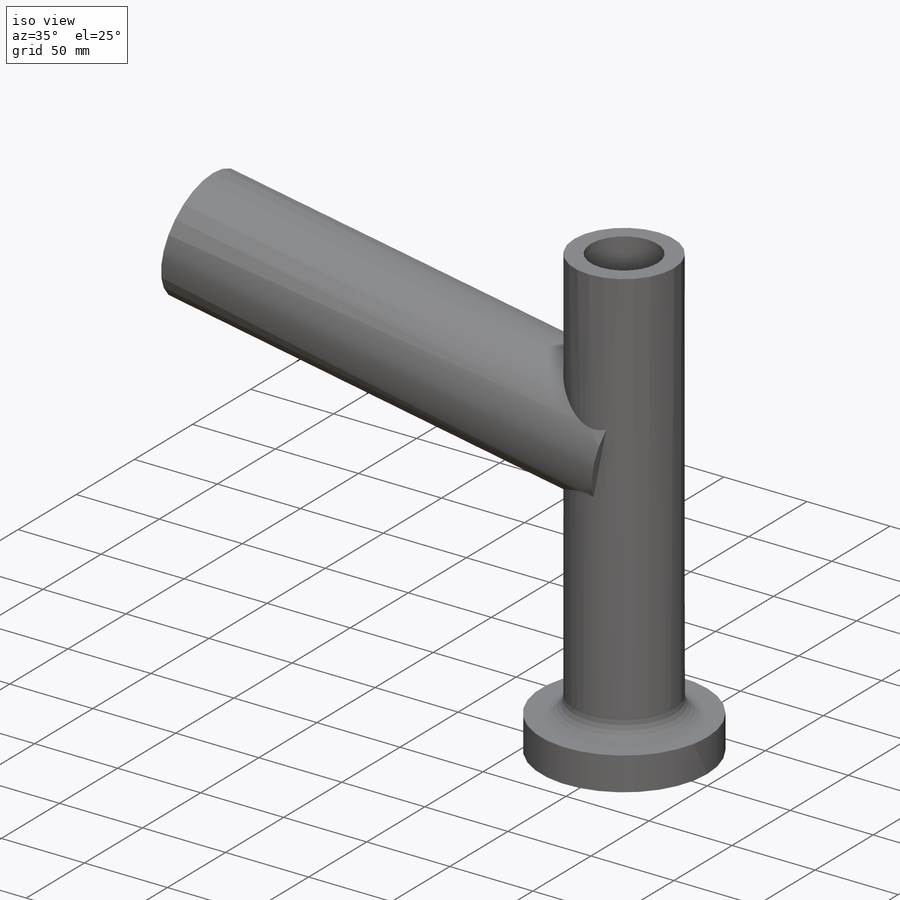
[diagram: iso view]
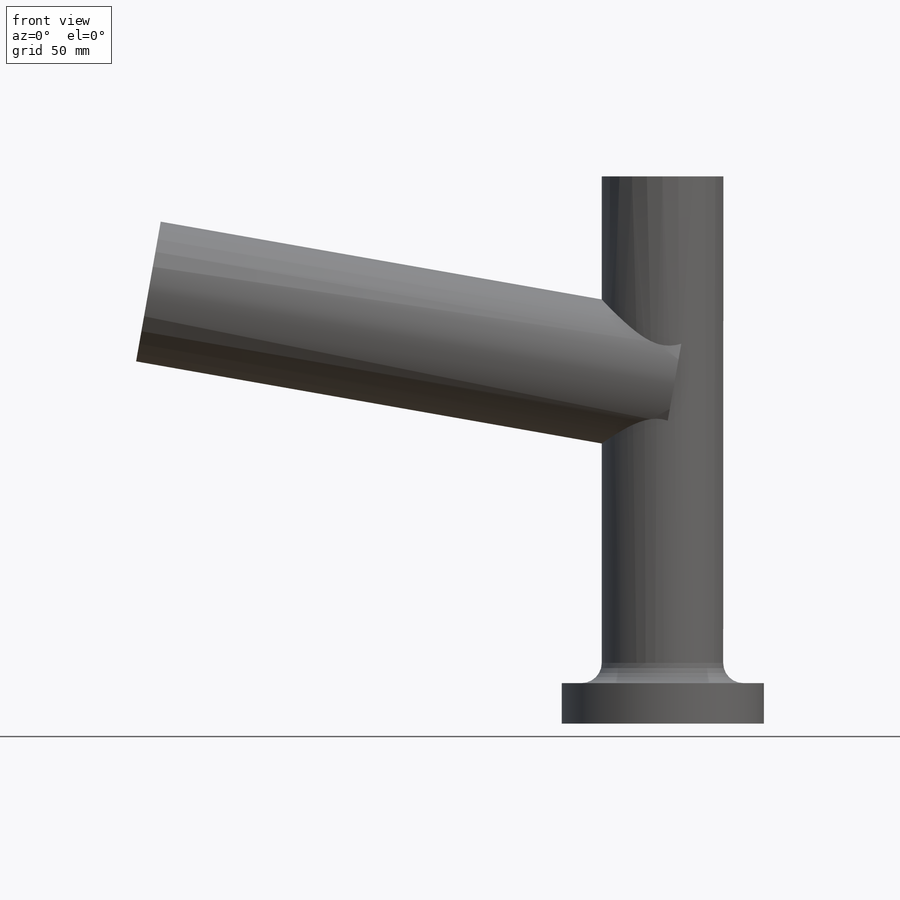
[diagram: front view]
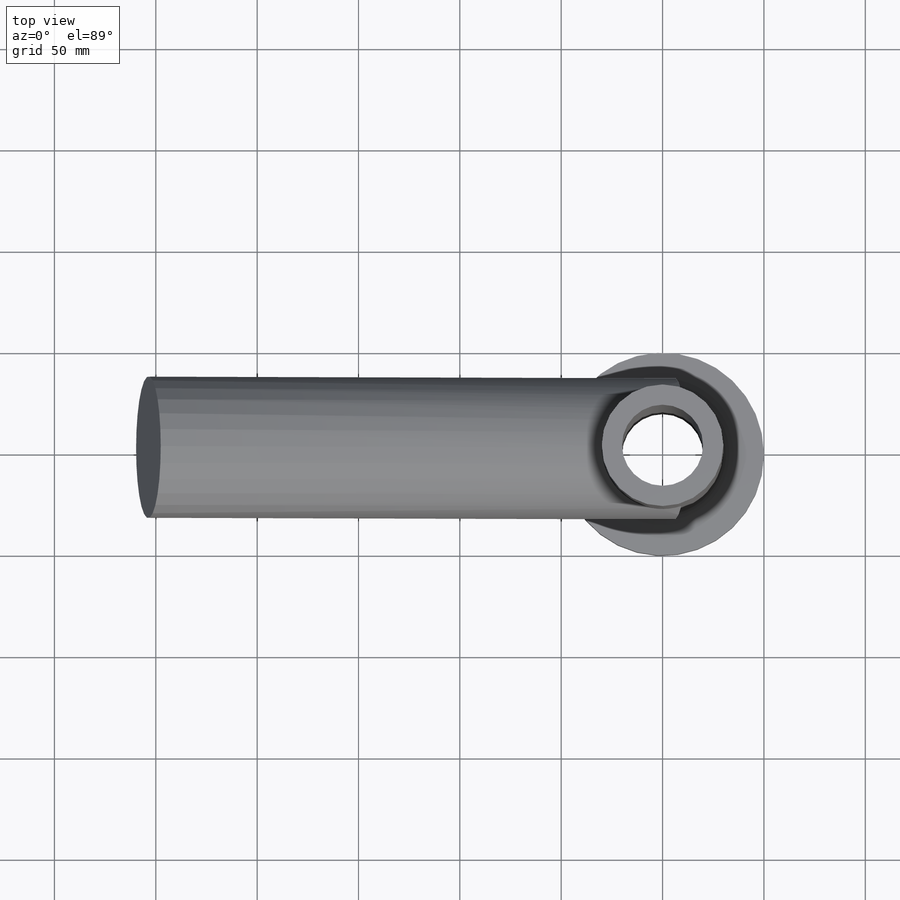
[diagram: top view]
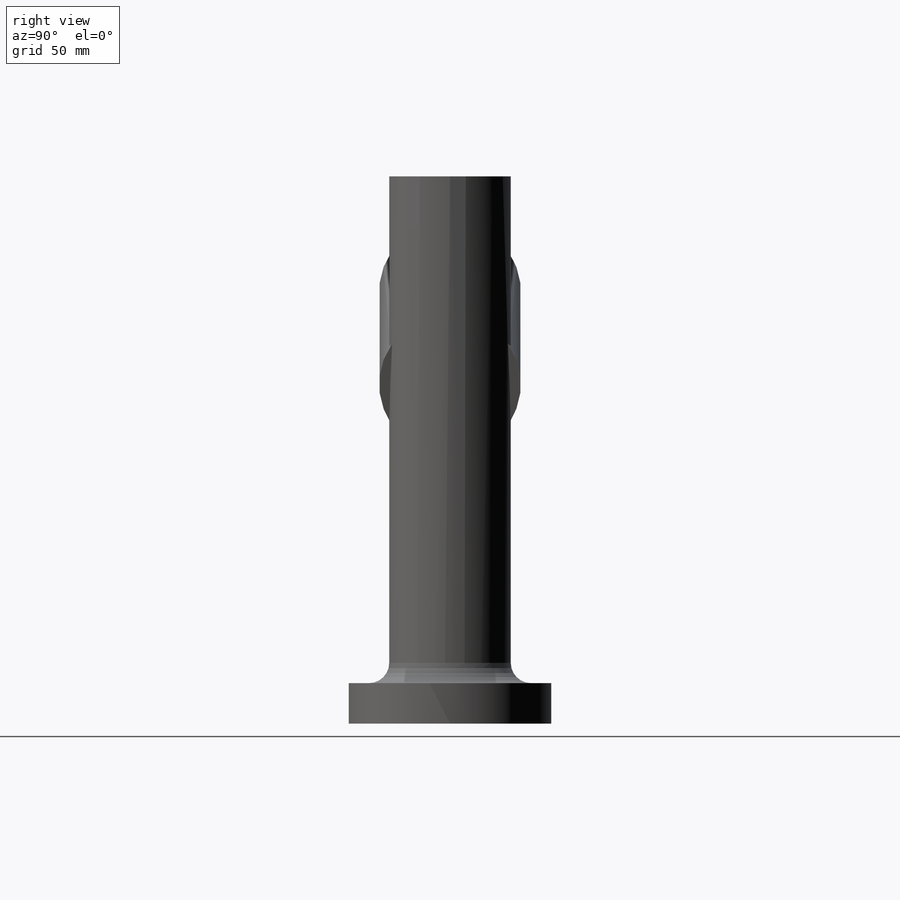
[diagram: right view]
SOLIDWORKS PART (.sldprt)
format: sldprt  version: not decoded by parser v0  size: 155,648 bytes
history: native  units: mm
features: sketch x3, material x1, revolve x1, plane x1, extrude x1, fillet x1, cut_extrude x1 (+13 scaffold rows collapsed)
feature tree (22):
  scaffold x13  (default folders/planes/origin — collapsed)
  material  "Material <not specified>"
  sketch  "Sketch14"  dims[D1=10.0mm D2=270.0mm D3=30.0mm D4=20.0mm D5=20.0mm]
  revolve  "Revolve3"  Angle=360deg
  plane  "Plane7"
  sketch  "Sketch11"  dims[D1=70.0mm D2=100.0mm]
  extrude  "Boss-Extrude2"  Depth=263.365761mm
  fillet  "Fillet2"  Radius=10mm
  sketch  "Sketch15"
  cut_extrude  "Cut-Extrude1"  [1 undecoded]
decode coverage: 5 of 7 modeling features carry decoded parameters
note: 1 parameter value undecoded
note: suppression state not decoded; provenance and decode notes live in map.json
